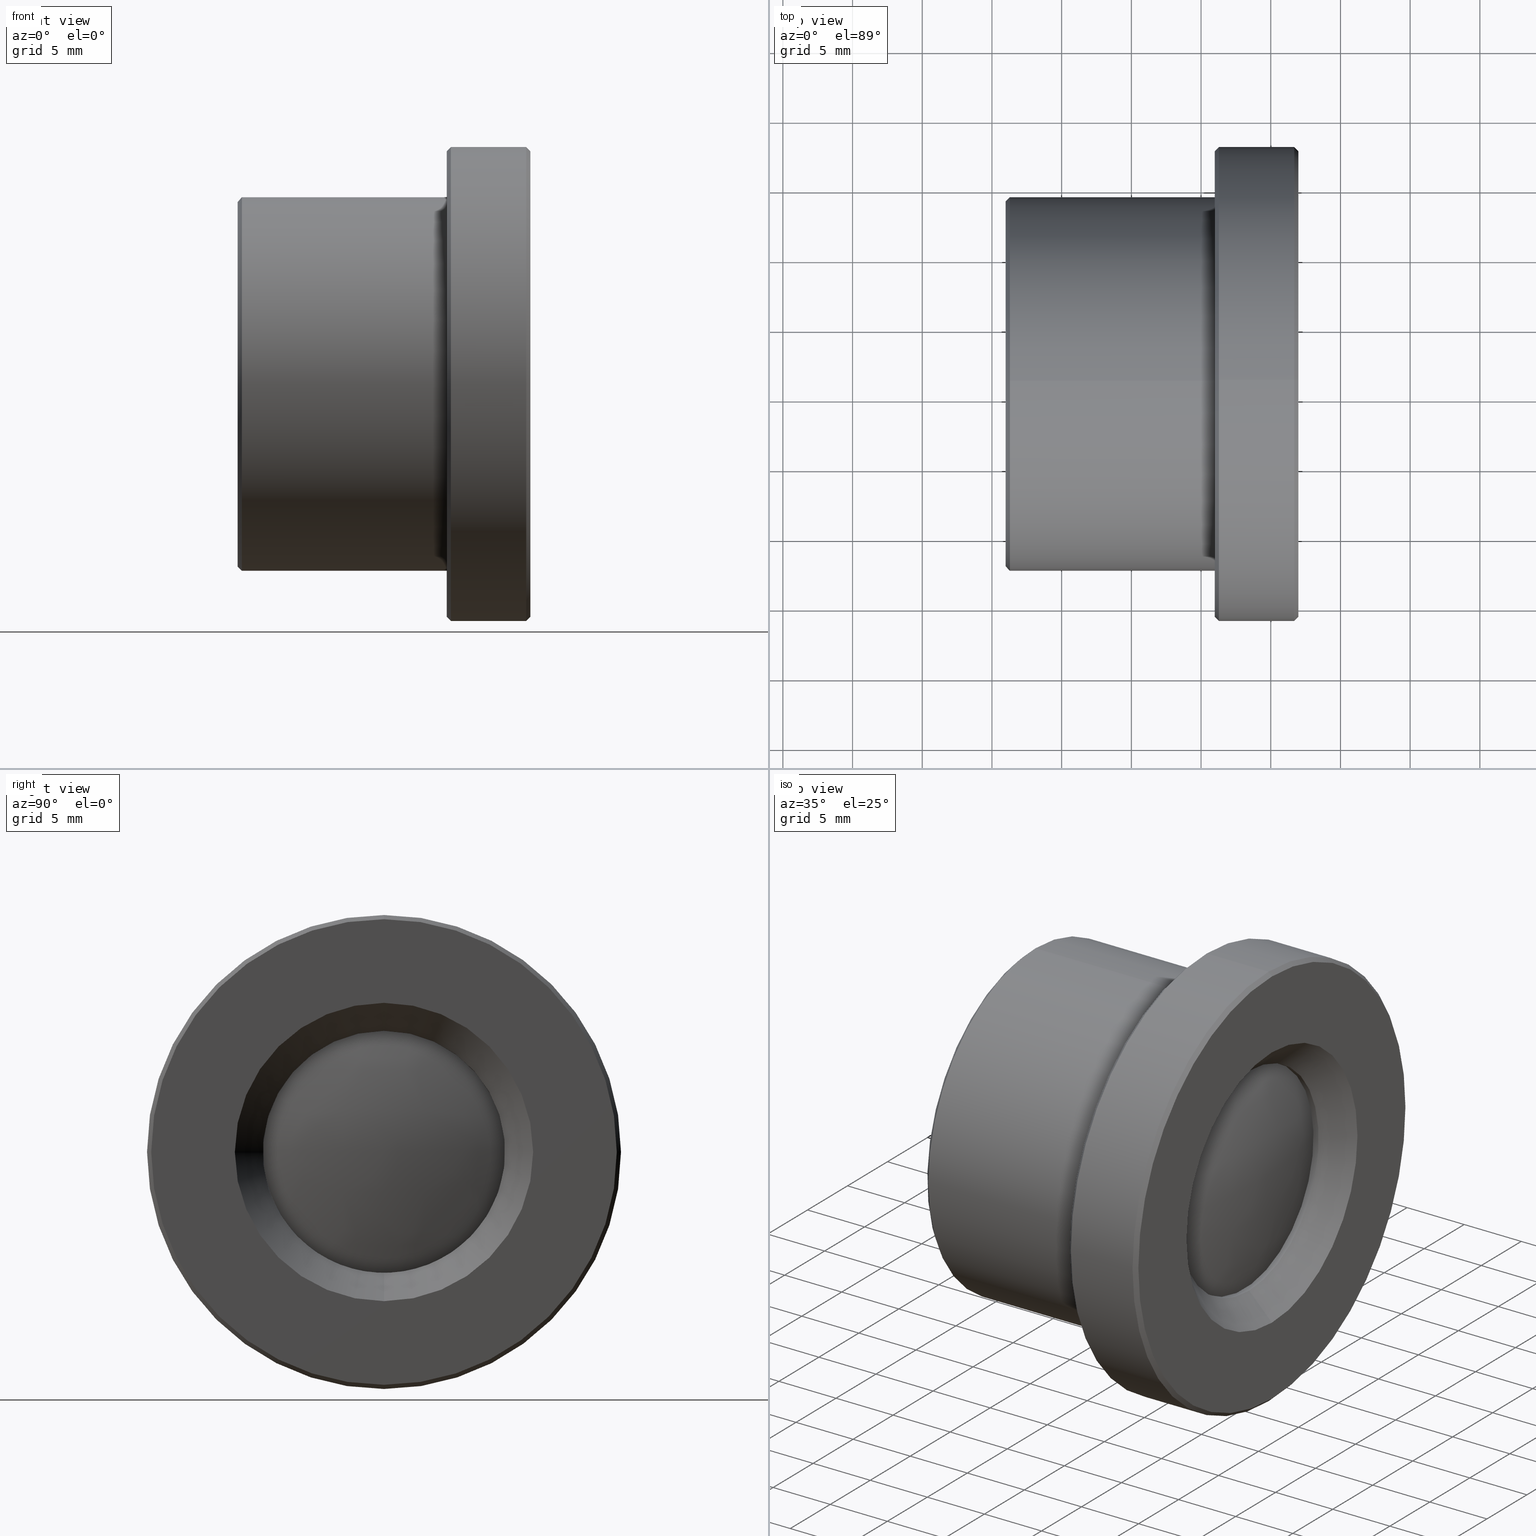
[diagram: canonical four-view strip — front | top / right | iso, engineering-drawing reading convention]
A machine part, canonical four-view strip (front | top / right | iso — engineering-drawing reading convention). The complete STEP part file that produces these views, byte-faithful:
ISO-10303-21;
HEADER;
FILE_DESCRIPTION (( 'STEP AP203' ),
    '1' );
FILE_NAME ('19mm.STEP',
    '2023-08-22T07:30:59',
    ( 'Windows User' ),
    ( 'P R C' ),
    'SwSTEP 2.0',
    'SolidWorks 2020',
    '' );
FILE_SCHEMA (( 'CONFIG_CONTROL_DESIGN' ));
ENDSEC;

DATA;
#1 = PERSON_AND_ORGANIZATION_ROLE ( 'design_owner' ) ;
#2 = FACE_OUTER_BOUND ( 'NONE', #68, .T. ) ;
#3 = CARTESIAN_POINT ( 'NONE',  ( 0.000000000000000000, 0.000000000000000000, 0.000000000000000000 ) ) ;
#4 = DIRECTION ( 'NONE',  ( -1.000000000000000000, 0.000000000000000000, 0.000000000000000000 ) ) ;
#5 = ADVANCED_FACE ( 'NONE', ( #408, #295 ), #438, .F. ) ;
#6 = CARTESIAN_POINT ( 'NONE',  ( 7656.280875221366841, -204.0133495471515630, -17.00000000000090239 ) ) ;
#7 = CARTESIAN_POINT ( 'NONE',  ( 7661.449936955510566, -200.9753385497254499, 3.018265889667290480 ) ) ;
#8 = CIRCLE ( 'NONE', #205, 10.69999999999244800 ) ;
#9 = AXIS2_PLACEMENT_3D ( 'NONE', #445, #175, #96 ) ;
#10 = APPROVAL_DATE_TIME ( #120, #402 ) ;
#11 = CARTESIAN_POINT ( 'NONE',  ( 7639.495609507284826, -204.0133495471515630, 0.000000000000000000 ) ) ;
#12 = APPROVAL_ROLE ( '' ) ;
#13 = PRODUCT_RELATED_PRODUCT_CATEGORY ( 'detail', '', ( #50 ) ) ;
#14 = CARTESIAN_POINT ( 'NONE',  ( 7641.280875762231517, -204.0133495471515630, 0.000000000000000000 ) ) ;
#15 = CARTESIAN_POINT ( 'NONE',  ( 7643.420402116918012, -200.1611946171682348, -11.04586798217061627 ) ) ;
#16 = CIRCLE ( 'NONE', #473, 13.40000000572944039 ) ;
#17 = PERSON_AND_ORGANIZATION_ROLE ( 'creator' ) ;
#18 = CARTESIAN_POINT ( 'NONE',  ( 7643.476783483160943, -214.6072566139389153, -3.305779238781193285 ) ) ;
#19 = PERSON_AND_ORGANIZATION_ROLE ( 'classification_officer' ) ;
#20 = DIRECTION ( 'NONE',  ( -1.000000000000000000, -0.000000000000000000, -0.000000000000000000 ) ) ;
#21 = APPROVAL ( #82, 'δָ��' ) ;
#22 = DIRECTION ( 'NONE',  ( -1.000000000000000000, -0.000000000000000000, -0.000000000000000000 ) ) ;
#23 = CONICAL_SURFACE ( 'NONE', #85, 10.69999999999244800, 0.7853981633954386643 ) ;
#24 = DIRECTION ( 'NONE',  ( -1.000000000000000000, -0.000000000000000000, -0.000000000000000000 ) ) ;
#25 = AXIS2_PLACEMENT_3D ( 'NONE', #3, #183, #180 ) ;
#26 = EDGE_LOOP ( 'NONE', ( #219 ) ) ;
#27 = DIRECTION ( 'NONE',  ( -1.000000000000000000, -0.000000000000000000, -0.000000000000000000 ) ) ;
#28 = PRODUCT_DEFINITION ( 'δ֪', '', #123, #228 ) ;
#29 = EDGE_LOOP ( 'NONE', ( #106 ) ) ;
#30 = CARTESIAN_POINT ( 'NONE',  ( 7643.280876115796673, -192.7133491993163830, 0.000000000000000000 ) ) ;
#31 = ORIENTED_EDGE ( 'NONE', *, *, #338, .T. ) ;
#32 = CYLINDRICAL_SURFACE ( 'NONE', #389, 8.699999999999818101 ) ;
#33 = CIRCLE ( 'NONE', #499, 8.699999999999818101 ) ;
#34 = EDGE_LOOP ( 'NONE', ( #485 ) ) ;
#35 = AXIS2_PLACEMENT_3D ( 'NONE', #30, #333, #102 ) ;
#36 = EDGE_LOOP ( 'NONE', ( #254 ) ) ;
#37 = EDGE_CURVE ( 'NONE', #107, #107, #77, .T. ) ;
#38 = FACE_OUTER_BOUND ( 'NONE', #330, .T. ) ;
#39 =( NAMED_UNIT ( * ) SI_UNIT ( $, .STERADIAN. ) SOLID_ANGLE_UNIT ( ) );
#40 = CARTESIAN_POINT ( 'NONE',  ( 7659.882946066190925, -212.8459069007113840, 2.883664566339439350 ) ) ;
#41 = AXIS2_PLACEMENT_3D ( 'NONE', #462, #115, #274 ) ;
#42 = CIRCLE ( 'NONE', #423, 11.30000034783518181 ) ;
#43 = CARTESIAN_POINT ( 'NONE',  ( 7655.980875221367569, -204.0133495471515630, 13.40000000572944039 ) ) ;
#44 = DIRECTION ( 'NONE',  ( 1.000000000000000000, 0.000000000000000000, 0.000000000000000000 ) ) ;
#45 = EDGE_CURVE ( 'NONE', #230, #230, #463, .T. ) ;
#46 = CARTESIAN_POINT ( 'NONE',  ( 7640.980875767964790, -204.0133495471515630, -13.09999999999581455 ) ) ;
#47 = APPLICATION_PROTOCOL_DEFINITION ( 'international standard', 'config_control_design', 1994, #255 ) ;
#48 = DIRECTION ( 'NONE',  ( 1.000000000000000000, -0.000000000000000000, 0.000000000000000000 ) ) ;
#49 = DIRECTION ( 'NONE',  ( 0.000000000000000000, 0.000000000000000000, 1.000000000000000000 ) ) ;
#50 = PRODUCT ( '19mm', '19mm', '', ( #302 ) ) ;
#51 = CARTESIAN_POINT ( 'NONE',  ( 7646.805328622443994, -193.4639260515820922, -9.075344728438510700 ) ) ;
#52 = CARTESIAN_POINT ( 'NONE',  ( 7646.827875168386527, -214.6072566139389153, -9.062219334726135500 ) ) ;
#53 = AXIS2_PLACEMENT_3D ( 'NONE', #112, #44, #269 ) ;
#54 = AXIS2_PLACEMENT_3D ( 'NONE', #412, #253, #404 ) ;
#55 = CARTESIAN_POINT ( 'NONE',  ( 7643.428675501929320, -207.9196741031916531, -11.04105165971077263 ) ) ;
#56 = ADVANCED_FACE ( 'NONE', ( #467, #109 ), #108, .T. ) ;
#57 = CARTESIAN_POINT ( 'NONE',  ( 7644.269570587941416, -204.0133495471515630, 0.000000000000000000 ) ) ;
#58 = PLANE ( 'NONE',  #35 ) ;
#59 = ORIENTED_EDGE ( 'NONE', *, *, #482, .F. ) ;
#60 = ADVANCED_FACE ( 'NONE', ( #2 ), #418, .T. ) ;
#61 = CONICAL_SURFACE ( 'NONE', #196, 17.00000000000090239, 0.7853981633974367327 ) ;
#62 = CARTESIAN_POINT ( 'NONE',  ( 7644.280875221365022, -192.3599466730717609, 0.000000000000000000 ) ) ;
#63 = AXIS2_PLACEMENT_3D ( 'NONE', #289, #440, #212 ) ;
#64 = ORIENTED_EDGE ( 'NONE', *, *, #170, .T. ) ;
#65 = FACE_OUTER_BOUND ( 'NONE', #129, .T. ) ;
#66 = ORIENTED_EDGE ( 'NONE', *, *, #427, .T. ) ;
#67 = DIRECTION ( 'NONE',  ( 0.000000000000000000, 0.000000000000000000, 1.000000000000000000 ) ) ;
#68 = EDGE_LOOP ( 'NONE', ( #337 ) ) ;
#69 = VERTEX_POINT ( 'NONE', #454 ) ;
#70 = ORIENTED_EDGE ( 'NONE', *, *, #338, .F. ) ;
#71 = EDGE_CURVE ( 'NONE', #69, #69, #405, .T. ) ;
#72 = VERTEX_POINT ( 'NONE', #268 ) ;
#73 = CARTESIAN_POINT ( 'NONE',  ( 7639.495609507284826, -204.0133495471515630, 0.000000000000000000 ) ) ;
#74 =( LENGTH_UNIT ( ) NAMED_UNIT ( * ) SI_UNIT ( .MILLI., .METRE. ) );
#75 = DIRECTION ( 'NONE',  ( -1.000000000000000000, -3.700743415416954124E-14, -0.000000000000000000 ) ) ;
#76 = DIRECTION ( 'NONE',  ( 0.000000000000000000, 0.000000000000000000, 1.000000000000000000 ) ) ;
#77 = CIRCLE ( 'NONE', #231, 10.70000000000070273 ) ;
#78 = AXIS2_PLACEMENT_3D ( 'NONE', #62, #367, #486 ) ;
#79 =( NAMED_UNIT ( * ) PLANE_ANGLE_UNIT ( ) SI_UNIT ( $, .RADIAN. ) );
#80 = FACE_BOUND ( 'NONE', #370, .T. ) ;
#81 = CARTESIAN_POINT ( 'NONE',  ( 7659.892753909765815, -207.0121516242092241, 8.904199734635835028 ) ) ;
#82 = APPROVAL_STATUS ( 'not_yet_approved' ) ;
#83 = CARTESIAN_POINT ( 'NONE',  ( 7646.829012104044523, -193.4639260515820922, 9.115906206490720365 ) ) ;
#84 = ADVANCED_FACE ( 'NONE', ( #459, #309 ), #315, .F. ) ;
#85 = AXIS2_PLACEMENT_3D ( 'NONE', #469, #362, #118 ) ;
#86 = DATE_AND_TIME ( #470, #232 ) ;
#87 = DIRECTION ( 'NONE',  ( -1.000000000000000000, -0.000000000000000000, -0.000000000000000000 ) ) ;
#88 = COORDINATED_UNIVERSAL_TIME_OFFSET ( 8, 0, .AHEAD. ) ;
#89 = EDGE_CURVE ( 'NONE', #111, #111, #33, .T. ) ;
#90 = CYLINDRICAL_SURFACE ( 'NONE', #457, 10.70000000000026574 ) ;
#91 = SECURITY_CLASSIFICATION ( '', '', #130 ) ;
#92 = CARTESIAN_POINT ( 'NONE',  ( 7639.345837176527311, -207.9196741031915963, -4.027631422594006416 ) ) ;
#93 = DIRECTION ( 'NONE',  ( 1.000000000000000000, 0.000000000000000000, 0.000000000000000000 ) ) ;
#94 = EDGE_LOOP ( 'NONE', ( #66 ) ) ;
#95 = EDGE_CURVE ( 'NONE', #384, #384, #139, .T. ) ;
#96 = DIRECTION ( 'NONE',  ( 0.000000000000000000, 0.000000000000000000, -1.000000000000000000 ) ) ;
#97 = EDGE_LOOP ( 'NONE', ( #476 ) ) ;
#98 = AXIS2_PLACEMENT_3D ( 'NONE', #434, #481, #199 ) ;
#99 = CIRCLE ( 'NONE', #63, 11.70000034783300080 ) ;
#100 = CARTESIAN_POINT ( 'NONE',  ( 7639.495609507284826, -204.0133495471515630, 0.000000000000000000 ) ) ;
#101 = ORIENTED_EDGE ( 'NONE', *, *, #472, .F. ) ;
#102 = DIRECTION ( 'NONE',  ( 0.000000000000000000, 0.000000000000000000, 1.000000000000000000 ) ) ;
#103 = ORIENTED_EDGE ( 'NONE', *, *, #71, .T. ) ;
#104 = CYLINDRICAL_SURFACE ( 'NONE', #240, 11.70000034783300080 ) ;
#105 = CC_DESIGN_PERSON_AND_ORGANIZATION_ASSIGNMENT ( #280, #19, ( #91 ) ) ;
#106 = ORIENTED_EDGE ( 'NONE', *, *, #377, .F. ) ;
#107 = VERTEX_POINT ( 'NONE', #273 ) ;
#108 = CONICAL_SURFACE ( 'NONE', #396, 17.00000000000181188, 0.7853981633974367327 ) ;
#109 = FACE_OUTER_BOUND ( 'NONE', #292, .T. ) ;
#110 = ADVANCED_BREP_SHAPE_REPRESENTATION ( '19mm', ( #211, #25 ), #414 ) ;
#111 = VERTEX_POINT ( 'NONE', #378 ) ;
#112 = CARTESIAN_POINT ( 'NONE',  ( 7659.980875221367569, -204.0133495471515630, 0.000000000000000000 ) ) ;
#113 = VERTEX_POINT ( 'NONE', #424 ) ;
#114 = CARTESIAN_POINT ( 'NONE',  ( 7659.535657272195749, -204.0133495471515630, 0.000000000000000000 ) ) ;
#115 = DIRECTION ( 'NONE',  ( -1.000000000000000000, -0.000000000000000000, -0.000000000000000000 ) ) ;
#116 = CARTESIAN_POINT ( 'NONE',  ( 7659.868545998720037, -195.1433392923319161, -2.932367345847070705 ) ) ;
#117 = CALENDAR_DATE ( 2023, 22, 8 ) ;
#118 = DIRECTION ( 'NONE',  ( 0.000000000000000000, 0.000000000000000000, -1.000000000000000000 ) ) ;
#119 = ADVANCED_FACE ( 'NONE', ( #80, #304 ), #61, .T. ) ;
#120 = DATE_AND_TIME ( #430, #464 ) ;
#121 = DIRECTION ( 'NONE',  ( 1.000000000000000000, 0.000000000000000000, 0.000000000000000000 ) ) ;
#122 = AXIS2_PLACEMENT_3D ( 'NONE', #227, #276, #347 ) ;
#123 = PRODUCT_DEFINITION_FORMATION_WITH_SPECIFIED_SOURCE ( '�κ�', '', #50, .NOT_KNOWN. ) ;
#124 = CARTESIAN_POINT ( 'NONE',  ( 7639.356402569862439, -207.9196741031915963, 4.087633242606061756 ) ) ;
#125 = ORIENTED_EDGE ( 'NONE', *, *, #156, .F. ) ;
#126 = ADVANCED_FACE ( 'NONE', ( #266, #38 ), #416, .T. ) ;
#127 = COORDINATED_UNIVERSAL_TIME_OFFSET ( 8, 0, .AHEAD. ) ;
#128 = CARTESIAN_POINT ( 'NONE',  ( 7644.280875221365932, -204.0133495471515630, 0.000000000000000000 ) ) ;
#129 = EDGE_LOOP ( 'NONE', ( #64 ) ) ;
#130 = SECURITY_CLASSIFICATION_LEVEL ( 'unclassified' ) ;
#131 = DIRECTION ( 'NONE',  ( -1.000000000000000000, -0.000000000000000000, -0.000000000000000000 ) ) ;
#132 = ORIENTED_EDGE ( 'NONE', *, *, #272, .F. ) ;
#133 = FACE_OUTER_BOUND ( 'NONE', #179, .T. ) ;
#134 = EDGE_LOOP ( 'NONE', ( #332 ) ) ;
#135 = PLANE ( 'NONE',  #78 ) ;
#136 = EDGE_LOOP ( 'NONE', ( #413 ) ) ;
#137 = CARTESIAN_POINT ( 'NONE',  ( 7655.980875221367569, -204.0133495471515630, 0.000000000000000000 ) ) ;
#138 = EDGE_LOOP ( 'NONE', ( #70 ) ) ;
#139 = CIRCLE ( 'NONE', #53, 8.699999999999818101 ) ;
#140 = AXIS2_PLACEMENT_3D ( 'NONE', #490, #215, #178 ) ;
#141 = FACE_BOUND ( 'NONE', #94, .T. ) ;
#142 = EDGE_LOOP ( 'NONE', ( #132 ) ) ;
#143 = FACE_OUTER_BOUND ( 'NONE', #259, .T. ) ;
#144 = ORIENTED_EDGE ( 'NONE', *, *, #303, .F. ) ;
#145 = APPLICATION_PROTOCOL_DEFINITION ( 'international standard', 'config_control_design', 1994, #318 ) ;
#146 = DIRECTION ( 'NONE',  ( 0.000000000000000000, 0.000000000000000000, 1.000000000000000000 ) ) ;
#147 = CARTESIAN_POINT ( 'NONE',  ( 7643.280876115796673, -204.0133495471515630, 11.30000034783518181 ) ) ;
#148 = CIRCLE ( 'NONE', #491, 17.00000000000090239 ) ;
#149 = DIRECTION ( 'NONE',  ( -1.000000000000000000, 0.000000000000000000, 0.000000000000000000 ) ) ;
#150 = CARTESIAN_POINT ( 'NONE',  ( 7661.680875221368296, -204.0133495471515630, 17.00000000000136069 ) ) ;
#151 = CARTESIAN_POINT ( 'NONE',  ( 7658.369807831731123, -195.1433392923319161, -8.551080146670830828 ) ) ;
#152 = VERTEX_POINT ( 'NONE', #311 ) ;
#153 = DIRECTION ( 'NONE',  ( 1.000000000000000000, 0.000000000000000000, 0.000000000000000000 ) ) ;
#154 = VERTEX_POINT ( 'NONE', #46 ) ;
#155 = CARTESIAN_POINT ( 'NONE',  ( 7645.080875221367023, -204.0133495471515630, 0.000000000000000000 ) ) ;
#156 = EDGE_CURVE ( 'NONE', #346, #346, #314, .T. ) ;
#157 = PERSON_AND_ORGANIZATION ( #403, #341 ) ;
#158 = FACE_BOUND ( 'NONE', #487, .T. ) ;
#159 = DATE_TIME_ROLE ( 'creation_date' ) ;
#160 = DIRECTION ( 'NONE',  ( 1.000000000000000000, -0.000000000000000000, 0.000000000000000000 ) ) ;
#161 = PLANE ( 'NONE',  #168 ) ;
#162 = CC_DESIGN_APPROVAL ( #465, ( #123 ) ) ;
#163 = CARTESIAN_POINT ( 'NONE',  ( 7646.851524397291541, -214.6072566139389153, 9.102722149953557107 ) ) ;
#164 = COORDINATED_UNIVERSAL_TIME_OFFSET ( 8, 0, .AHEAD. ) ;
#165 = CARTESIAN_POINT ( 'NONE',  ( 7661.980875221368478, -204.0133495471515630, 0.000000000000000000 ) ) ;
#166 = CARTESIAN_POINT ( 'NONE',  ( 7641.680876115799038, -204.0133495471515630, 0.000000000000000000 ) ) ;
#167 = EDGE_LOOP ( 'NONE', ( #492 ) ) ;
#168 = AXIS2_PLACEMENT_3D ( 'NONE', #319, #160, #350 ) ;
#169 = CIRCLE ( 'NONE', #374, 10.70000000000026574 ) ;
#170 = EDGE_CURVE ( 'NONE', #152, #152, #446, .T. ) ;
#171 = FACE_OUTER_BOUND ( 'NONE', #334, .T. ) ;
#172 = ORIENTED_EDGE ( 'NONE', *, *, #303, .T. ) ;
#173 = DIRECTION ( 'NONE',  ( 0.000000000000000000, 0.000000000000000000, 1.000000000000000000 ) ) ;
#174 = EDGE_LOOP ( 'NONE', ( #125 ) ) ;
#175 = DIRECTION ( 'NONE',  ( 1.000000000000000000, 0.000000000000000000, 0.000000000000000000 ) ) ;
#176 = EDGE_LOOP ( 'NONE', ( #353 ) ) ;
#177 = ADVANCED_FACE ( 'NONE', ( #399, #158 ), #366, .T. ) ;
#178 = DIRECTION ( 'NONE',  ( 0.000000000000000000, 0.000000000000000000, -1.000000000000000000 ) ) ;
#179 = EDGE_LOOP ( 'NONE', ( #252 ) ) ;
#180 = DIRECTION ( 'NONE',  ( 1.000000000000000000, 0.000000000000000000, 0.000000000000000000 ) ) ;
#181 = ORIENTED_EDGE ( 'NONE', *, *, #267, .F. ) ;
#182 = CC_DESIGN_PERSON_AND_ORGANIZATION_ASSIGNMENT ( #185, #1, ( #50 ) ) ;
#183 = DIRECTION ( 'NONE',  ( 0.000000000000000000, 0.000000000000000000, 1.000000000000000000 ) ) ;
#184 = CARTESIAN_POINT ( 'NONE',  ( 7661.980875221368478, -204.0133495471515630, 0.000000000000000000 ) ) ;
#185 = PERSON_AND_ORGANIZATION ( #403, #341 ) ;
#186 = AXIS2_PLACEMENT_3D ( 'NONE', #286, #121, #283 ) ;
#187 = LOCAL_TIME ( 15, 30, 59.00000000000000000, #436 ) ;
#188 = CARTESIAN_POINT ( 'NONE',  ( 7659.878649858987046, -212.8459069007113840, -2.933250283732379504 ) ) ;
#189 = AXIS2_PLACEMENT_3D ( 'NONE', #400, #22, #331 ) ;
#190 = DIRECTION ( 'NONE',  ( -1.000000000000000000, -0.000000000000000000, -0.000000000000000000 ) ) ;
#191 = VERTEX_POINT ( 'NONE', #461 ) ;
#192 = CARTESIAN_POINT ( 'NONE',  ( 7640.980875767964790, -190.9133495471557467, 0.000000000000000000 ) ) ;
#193 = CC_DESIGN_PERSON_AND_ORGANIZATION_ASSIGNMENT ( #480, #17, ( #123 ) ) ;
#194 = APPROVAL_STATUS ( 'not_yet_approved' ) ;
#195 = CARTESIAN_POINT ( 'NONE',  ( 7658.392060399817638, -212.8459069007113555, 8.506277549658658899 ) ) ;
#196 = AXIS2_PLACEMENT_3D ( 'NONE', #460, #455, #271 ) ;
#197 = CC_DESIGN_APPROVAL ( #21, ( #91 ) ) ;
#198 = CALENDAR_DATE ( 2023, 22, 8 ) ;
#199 = DIRECTION ( 'NONE',  ( 0.000000000000000000, 0.000000000000000000, 1.000000000000000000 ) ) ;
#200 = EDGE_LOOP ( 'NONE', ( #31 ) ) ;
#201 = EDGE_CURVE ( 'NONE', #270, #270, #16, .T. ) ;
#202 = FACE_OUTER_BOUND ( 'NONE', #209, .T. ) ;
#203 = DATE_AND_TIME ( #428, #306 ) ;
#204 = PLANE ( 'NONE',  #98 ) ;
#205 = AXIS2_PLACEMENT_3D ( 'NONE', #165, #242, #395 ) ;
#206 = CC_DESIGN_SECURITY_CLASSIFICATION ( #91, ( #123 ) ) ;
#207 = FACE_OUTER_BOUND ( 'NONE', #136, .T. ) ;
#208 = FACE_OUTER_BOUND ( 'NONE', #261, .T. ) ;
#209 = EDGE_LOOP ( 'NONE', ( #411 ) ) ;
#210 = ADVANCED_FACE ( 'NONE', ( #317, #390 ), #161, .F. ) ;
#211 = MANIFOLD_SOLID_BREP ( 'NONE', #256 ) ;
#212 = DIRECTION ( 'NONE',  ( 0.000000000000000000, 0.000000000000000000, 1.000000000000000000 ) ) ;
#213 = EDGE_LOOP ( 'NONE', ( #221 ) ) ;
#214 = CONICAL_SURFACE ( 'NONE', #247, 11.65340287407978792, 0.8726646259980592735 ) ;
#215 = DIRECTION ( 'NONE',  ( 1.000000000000000000, 0.000000000000000000, 0.000000000000000000 ) ) ;
#216 = ORIENTED_EDGE ( 'NONE', *, *, #201, .F. ) ;
#217 = FACE_OUTER_BOUND ( 'NONE', #176, .T. ) ;
#218 = ADVANCED_FACE ( 'NONE', ( #327, #358 ), #204, .F. ) ;
#219 = ORIENTED_EDGE ( 'NONE', *, *, #267, .T. ) ;
#220 = CYLINDRICAL_SURFACE ( 'NONE', #189, 17.00000000000136069 ) ;
#221 = ORIENTED_EDGE ( 'NONE', *, *, #89, .F. ) ;
#222 = AXIS2_PLACEMENT_3D ( 'NONE', #421, #75, #495 ) ;
#223 = CIRCLE ( 'NONE', #288, 13.40000000572944039 ) ;
#224 = CARTESIAN_POINT ( 'NONE',  ( 7661.980875221368478, -204.0133495471515630, 16.70000000000162999 ) ) ;
#225 = ORIENTED_EDGE ( 'NONE', *, *, #293, .T. ) ;
#226 = VERTEX_POINT ( 'NONE', #265 ) ;
#227 = CARTESIAN_POINT ( 'NONE',  ( 7655.980875221366659, -204.0133495471515630, 0.000000000000000000 ) ) ;
#228 = DESIGN_CONTEXT ( 'detailed design', #255, 'design' ) ;
#229 = DIRECTION ( 'NONE',  ( -1.000000000000000000, -0.000000000000000000, -0.000000000000000000 ) ) ;
#230 = VERTEX_POINT ( 'NONE', #313 ) ;
#231 = AXIS2_PLACEMENT_3D ( 'NONE', #155, #229, #345 ) ;
#232 = LOCAL_TIME ( 15, 30, 59.00000000000000000, #127 ) ;
#233 = CARTESIAN_POINT ( 'NONE',  ( 7658.382404017956105, -195.1433392923319161, 8.503717074422439737 ) ) ;
#234 = CARTESIAN_POINT ( 'NONE',  ( 7644.569570587943417, -204.0133495471515630, 10.70000000000026574 ) ) ;
#235 = CARTESIAN_POINT ( 'NONE',  ( 7658.379460420873329, -212.8459069007113555, -8.553654882961669870 ) ) ;
#236 = CC_DESIGN_DATE_AND_TIME_ASSIGNMENT ( #324, #159, ( #28 ) ) ;
#237 = DATE_TIME_ROLE ( 'classification_date' ) ;
#238 = CARTESIAN_POINT ( 'NONE',  ( 7661.448885765393243, -207.0121516242092241, -3.070467222067310598 ) ) ;
#239 = CARTESIAN_POINT ( 'NONE',  ( 7643.485455294026906, -214.6072566139389153, 3.355027233463912850 ) ) ;
#240 = AXIS2_PLACEMENT_3D ( 'NONE', #409, #262, #67 ) ;
#241 = APPROVAL_DATE_TIME ( #86, #21 ) ;
#242 = DIRECTION ( 'NONE',  ( 1.000000000000000000, 0.000000000000000000, 0.000000000000000000 ) ) ;
#243 = DATE_AND_TIME ( #117, #187 ) ;
#244 = FACE_BOUND ( 'NONE', #285, .T. ) ;
#245 = PERSON_AND_ORGANIZATION_ROLE ( 'creator' ) ;
#246 = CARTESIAN_POINT ( 'NONE',  ( 7643.449383336115716, -193.4639260515820922, -3.310567210958084150 ) ) ;
#247 = AXIS2_PLACEMENT_3D ( 'NONE', #128, #297, #443 ) ;
#248 = CARTESIAN_POINT ( 'NONE',  ( 7643.457488792406366, -207.9196741031916531, 11.09039869698413838 ) ) ;
#249 = ADVANCED_FACE ( 'NONE', ( #202, #207 ), #90, .T. ) ;
#250 = ORIENTED_EDGE ( 'NONE', *, *, #201, .T. ) ;
#251 = FACE_OUTER_BOUND ( 'NONE', #375, .T. ) ;
#252 = ORIENTED_EDGE ( 'NONE', *, *, #170, .F. ) ;
#253 = DIRECTION ( 'NONE',  ( -1.000000000000000000, -3.700743415416954124E-14, -0.000000000000000000 ) ) ;
#254 = ORIENTED_EDGE ( 'NONE', *, *, #45, .F. ) ;
#255 = APPLICATION_CONTEXT ( 'configuration controlled 3d designs of mechanical parts and assemblies' ) ;
#256 = CLOSED_SHELL ( 'NONE', ( #126, #387, #210, #84, #119, #5, #394, #441, #56, #449, #218, #456, #279, #360, #373, #326, #60, #249, #177, #310 ) ) ;
#257 = CC_DESIGN_PERSON_AND_ORGANIZATION_ASSIGNMENT ( #468, #391, ( #123 ) ) ;
#258 = CYLINDRICAL_SURFACE ( 'NONE', #282, 11.30000034783518181 ) ;
#259 = EDGE_LOOP ( 'NONE', ( #216 ) ) ;
#260 = FACE_OUTER_BOUND ( 'NONE', #167, .T. ) ;
#261 = EDGE_LOOP ( 'NONE', ( #144 ) ) ;
#262 = DIRECTION ( 'NONE',  ( -1.000000000000000000, -0.000000000000000000, -0.000000000000000000 ) ) ;
#263 = EDGE_LOOP ( 'NONE', ( #372 ) ) ;
#264 = AXIS2_PLACEMENT_3D ( 'NONE', #184, #4, #312 ) ;
#265 = CARTESIAN_POINT ( 'NONE',  ( 7661.980875221368478, -204.0133495471515630, -10.69999999999244800 ) ) ;
#266 = FACE_OUTER_BOUND ( 'NONE', #290, .T. ) ;
#267 = EDGE_CURVE ( 'NONE', #226, #226, #8, .T. ) ;
#268 = CARTESIAN_POINT ( 'NONE',  ( 7641.680876115799038, -204.0133495471515630, 11.30000034783485319 ) ) ;
#269 = DIRECTION ( 'NONE',  ( 0.000000000000000000, 0.000000000000000000, -1.000000000000000000 ) ) ;
#270 = VERTEX_POINT ( 'NONE', #307 ) ;
#271 = DIRECTION ( 'NONE',  ( 0.000000000000000000, 1.000000000000000000, 0.000000000000000000 ) ) ;
#272 = EDGE_CURVE ( 'NONE', #191, #191, #380, .T. ) ;
#273 = CARTESIAN_POINT ( 'NONE',  ( 7645.080875221367023, -204.0133495471515630, 10.70000000000070273 ) ) ;
#274 = DIRECTION ( 'NONE',  ( 0.000000000000000000, 0.000000000000000000, 1.000000000000000000 ) ) ;
#275 = CARTESIAN_POINT ( 'NONE',  ( 7640.980875767965699, -216.0133495471523304, 0.000000000000000000 ) ) ;
#276 = DIRECTION ( 'NONE',  ( 1.000000000000000000, 2.612289469706111714E-14, -0.000000000000000000 ) ) ;
#277 = PERSON_AND_ORGANIZATION ( #403, #341 ) ;
#278 = DIRECTION ( 'NONE',  ( 0.000000000000000000, 0.000000000000000000, -1.000000000000000000 ) ) ;
#279 = ADVANCED_FACE ( 'NONE', ( #397, #244 ), #23, .F. ) ;
#280 = PERSON_AND_ORGANIZATION ( #403, #341 ) ;
#281 = DIRECTION ( 'NONE',  ( 1.000000000000000000, 0.000000000000000000, 0.000000000000000000 ) ) ;
#282 = AXIS2_PLACEMENT_3D ( 'NONE', #300, #294, #452 ) ;
#283 = DIRECTION ( 'NONE',  ( 0.000000000000000000, 0.000000000000000000, -1.000000000000000000 ) ) ;
#284 = DIRECTION ( 'NONE',  ( 0.000000000000000000, 0.000000000000000000, 1.000000000000000000 ) ) ;
#285 = EDGE_LOOP ( 'NONE', ( #453 ) ) ;
#286 = CARTESIAN_POINT ( 'NONE',  ( 7644.569570587943417, -204.0133495471515630, 0.000000000000000000 ) ) ;
#287 = CIRCLE ( 'NONE', #422, 17.00000000000136069 ) ;
#288 = AXIS2_PLACEMENT_3D ( 'NONE', #137, #27, #363 ) ;
#289 = CARTESIAN_POINT ( 'NONE',  ( 7643.280876115796673, -204.0133495471515630, 0.000000000000000000 ) ) ;
#290 = EDGE_LOOP ( 'NONE', ( #250 ) ) ;
#291 = DIRECTION ( 'NONE',  ( 0.000000000000000000, 0.000000000000000000, 1.000000000000000000 ) ) ;
#292 = EDGE_LOOP ( 'NONE', ( #444 ) ) ;
#293 = EDGE_CURVE ( 'NONE', #342, #342, #287, .T. ) ;
#294 = DIRECTION ( 'NONE',  ( -1.000000000000000000, -0.000000000000000000, -0.000000000000000000 ) ) ;
#295 = FACE_OUTER_BOUND ( 'NONE', #368, .T. ) ;
#296 = AXIS2_PLACEMENT_3D ( 'NONE', #57, #352, #392 ) ;
#297 = DIRECTION ( 'NONE',  ( -1.000000000000000000, 0.000000000000000000, 0.000000000000000000 ) ) ;
#298 = EDGE_LOOP ( 'NONE', ( #59 ) ) ;
#299 =( BOUNDED_SURFACE ( )  B_SPLINE_SURFACE ( 3, 3, ( 
 ( #51, #246, #355, #83 ),
 ( #15, #322, #475, #429 ),
 ( #55, #92, #124, #248 ),
 ( #52, #18, #239, #163 ) ),
 .UNSPECIFIED., .F., .F., .F. ) 
 B_SPLINE_SURFACE_WITH_KNOTS ( ( 4, 4 ),
 ( 4, 4 ),
 ( 0.000000000000000000, 1.000000000000000000 ),
 ( 0.000000000000000000, 1.000000000000000000 ),
 .UNSPECIFIED. ) 
 GEOMETRIC_REPRESENTATION_ITEM ( )  RATIONAL_B_SPLINE_SURFACE ( (
 ( 1.000000000000000000, 0.9090461523126416310, 0.9090461523126416310, 1.000000000000000000),
 ( 0.9083966603011912611, 0.8257744888204516798, 0.8257744888204516798, 0.9083966603011912611),
 ( 0.9083966603011912611, 0.8257744888204516798, 0.8257744888204516798, 0.9083966603011912611),
 ( 1.000000000000000000, 0.9090461523126416310, 0.9090461523126416310, 1.000000000000000000) ) ) 
 REPRESENTATION_ITEM ( '' )  SURFACE ( )  );
#300 = CARTESIAN_POINT ( 'NONE',  ( 7639.495609507284826, -204.0133495471515630, 0.000000000000000000 ) ) ;
#301 = ORIENTED_EDGE ( 'NONE', *, *, #272, .T. ) ;
#302 = MECHANICAL_CONTEXT ( 'NONE', #318, 'mechanical' ) ;
#303 = EDGE_CURVE ( 'NONE', #417, #417, #148, .T. ) ;
#304 = FACE_OUTER_BOUND ( 'NONE', #401, .T. ) ;
#305 = UNCERTAINTY_MEASURE_WITH_UNIT (LENGTH_MEASURE( 1.000000000000000082E-05 ), #74, 'distance_accuracy_value', 'NONE');
#306 = LOCAL_TIME ( 15, 30, 59.00000000000000000, #164 ) ;
#307 = CARTESIAN_POINT ( 'NONE',  ( 7641.280875762231517, -204.0133495471515630, 13.40000000572944039 ) ) ;
#308 = CARTESIAN_POINT ( 'NONE',  ( 7659.872840912724314, -195.1433392923319161, 2.882796554254334342 ) ) ;
#309 = FACE_BOUND ( 'NONE', #263, .T. ) ;
#310 = ADVANCED_FACE ( 'NONE', ( #471 ), #299, .T. ) ;
#311 = CARTESIAN_POINT ( 'NONE',  ( 7644.280875221364113, -204.0133495471515630, 11.70000034783300080 ) ) ;
#312 = DIRECTION ( 'NONE',  ( 0.000000000000000000, 0.000000000000000000, 1.000000000000000000 ) ) ;
#313 = CARTESIAN_POINT ( 'NONE',  ( 7655.980875221366659, -187.3133495471508354, 0.000000000000000000 ) ) ;
#314 = CIRCLE ( 'NONE', #264, 16.70000000000162999 ) ;
#315 = PLANE ( 'NONE',  #388 ) ;
#316 = APPROVAL_ROLE ( '' ) ;
#317 = FACE_OUTER_BOUND ( 'NONE', #36, .T. ) ;
#318 = APPLICATION_CONTEXT ( 'configuration controlled 3d designs of mechanical parts and assemblies' ) ;
#319 = CARTESIAN_POINT ( 'NONE',  ( 7655.980875221366659, -187.3133495471508354, 0.000000000000000000 ) ) ;
#320 = CC_DESIGN_DATE_AND_TIME_ASSIGNMENT ( #243, #237, ( #91 ) ) ;
#321 = EDGE_LOOP ( 'NONE', ( #442 ) ) ;
#322 = CARTESIAN_POINT ( 'NONE',  ( 7639.335782777664463, -200.1611946171682632, -4.029388354114670001 ) ) ;
#323 = CIRCLE ( 'NONE', #474, 11.30000034783485319 ) ;
#324 = DATE_AND_TIME ( #198, #398 ) ;
#325 = FACE_BOUND ( 'NONE', #34, .T. ) ;
#326 = ADVANCED_FACE ( 'NONE', ( #325, #478 ), #214, .F. ) ;
#327 = FACE_BOUND ( 'NONE', #365, .T. ) ;
#328 = DIRECTION ( 'NONE',  ( 0.000000000000000000, 0.000000000000000000, 1.000000000000000000 ) ) ;
#329 = DIRECTION ( 'NONE',  ( -1.000000000000000000, -0.000000000000000000, -0.000000000000000000 ) ) ;
#330 = EDGE_LOOP ( 'NONE', ( #447 ) ) ;
#331 = DIRECTION ( 'NONE',  ( 0.000000000000000000, 0.000000000000000000, 1.000000000000000000 ) ) ;
#332 = ORIENTED_EDGE ( 'NONE', *, *, #156, .T. ) ;
#333 = DIRECTION ( 'NONE',  ( -1.000000000000000000, 0.000000000000000000, 0.000000000000000000 ) ) ;
#334 = EDGE_LOOP ( 'NONE', ( #339 ) ) ;
#335 = CONICAL_SURFACE ( 'NONE', #140, 13.40000000572944217, 0.7853981825084979107 ) ;
#336 = DIRECTION ( 'NONE',  ( -1.000000000000000000, -0.000000000000000000, -0.000000000000000000 ) ) ;
#337 = ORIENTED_EDGE ( 'NONE', *, *, #89, .T. ) ;
#338 = EDGE_CURVE ( 'NONE', #154, #154, #431, .T. ) ;
#339 = ORIENTED_EDGE ( 'NONE', *, *, #472, .T. ) ;
#340 = CARTESIAN_POINT ( 'NONE',  ( 7661.680875221368296, -204.0133495471515630, 0.000000000000000000 ) ) ;
#341 = ORGANIZATION ( 'δָ��', 'δָ��', '' ) ;
#342 = VERTEX_POINT ( 'NONE', #150 ) ;
#343 = CARTESIAN_POINT ( 'NONE',  ( 7661.453382948426224, -207.0121516242092241, 3.018561893434729360 ) ) ;
#344 = EDGE_CURVE ( 'NONE', #496, #496, #458, .T. ) ;
#345 = DIRECTION ( 'NONE',  ( 0.000000000000000000, 0.000000000000000000, 1.000000000000000000 ) ) ;
#346 = VERTEX_POINT ( 'NONE', #224 ) ;
#347 = DIRECTION ( 'NONE',  ( 0.000000000000000000, 1.000000000000000000, 0.000000000000000000 ) ) ;
#348 = COORDINATED_UNIVERSAL_TIME_OFFSET ( 8, 0, .AHEAD. ) ;
#349 = AXIS2_PLACEMENT_3D ( 'NONE', #386, #149, #385 ) ;
#350 = DIRECTION ( 'NONE',  ( 0.000000000000000000, 0.000000000000000000, -1.000000000000000000 ) ) ;
#351 = APPROVAL_STATUS ( 'not_yet_approved' ) ;
#352 = DIRECTION ( 'NONE',  ( 1.000000000000000000, 0.000000000000000000, 0.000000000000000000 ) ) ;
#353 = ORIENTED_EDGE ( 'NONE', *, *, #95, .T. ) ;
#354 = SHAPE_DEFINITION_REPRESENTATION ( #356, #110 ) ;
#355 = CARTESIAN_POINT ( 'NONE',  ( 7643.458067706923430, -193.4639260515820922, 3.359886534670175617 ) ) ;
#356 = PRODUCT_DEFINITION_SHAPE ( 'NONE', 'NONE',  #28 ) ;
#357 = APPROVAL_DATE_TIME ( #203, #465 ) ;
#358 = FACE_OUTER_BOUND ( 'NONE', #174, .T. ) ;
#359 = APPROVAL_PERSON_ORGANIZATION ( #157, #402, #316 ) ;
#360 = ADVANCED_FACE ( 'NONE', ( #65, #450 ), #135, .F. ) ;
#361 = PERSON_AND_ORGANIZATION ( #403, #341 ) ;
#362 = DIRECTION ( 'NONE',  ( 1.000000000000000000, 0.000000000000000000, 0.000000000000000000 ) ) ;
#363 = DIRECTION ( 'NONE',  ( 0.000000000000000000, 0.000000000000000000, 1.000000000000000000 ) ) ;
#364 = CARTESIAN_POINT ( 'NONE',  ( 7644.569570587943417, -204.0133495471515630, 0.000000000000000000 ) ) ;
#365 = EDGE_LOOP ( 'NONE', ( #181 ) ) ;
#366 = CONICAL_SURFACE ( 'NONE', #186, 10.69999999999982165, 0.7853981633975292143 ) ;
#367 = DIRECTION ( 'NONE',  ( 1.000000000000000000, -0.000000000000000000, 0.000000000000000000 ) ) ;
#368 = EDGE_LOOP ( 'NONE', ( #435 ) ) ;
#369 = FACE_BOUND ( 'NONE', #200, .T. ) ;
#370 = EDGE_LOOP ( 'NONE', ( #451 ) ) ;
#371 = DIRECTION ( 'NONE',  ( 0.000000000000000000, 0.000000000000000000, 1.000000000000000000 ) ) ;
#372 = ORIENTED_EDGE ( 'NONE', *, *, #344, .F. ) ;
#373 = ADVANCED_FACE ( 'NONE', ( #484, #217 ), #32, .F. ) ;
#374 = AXIS2_PLACEMENT_3D ( 'NONE', #364, #93, #173 ) ;
#375 = EDGE_LOOP ( 'NONE', ( #406 ) ) ;
#376 = DIRECTION ( 'NONE',  ( 0.000000000000000000, 0.000000000000000000, 1.000000000000000000 ) ) ;
#377 = EDGE_CURVE ( 'NONE', #420, #420, #169, .T. ) ;
#378 = CARTESIAN_POINT ( 'NONE',  ( 7659.535657272195749, -204.0133495471515630, 8.699999999999818101 ) ) ;
#379 = CARTESIAN_POINT ( 'NONE',  ( 7659.879564505996314, -207.0121516242092241, -8.953793371354379360 ) ) ;
#380 = CIRCLE ( 'NONE', #296, 10.39999999999781011 ) ;
#381 = CC_DESIGN_APPROVAL ( #402, ( #28 ) ) ;
#382 = VERTEX_POINT ( 'NONE', #147 ) ;
#383 = CARTESIAN_POINT ( 'NONE',  ( 7661.445440213478832, -200.9753385497254499, -3.070166128401665695 ) ) ;
#384 = VERTEX_POINT ( 'NONE', #466 ) ;
#385 = DIRECTION ( 'NONE',  ( 0.000000000000000000, 0.000000000000000000, 1.000000000000000000 ) ) ;
#386 = CARTESIAN_POINT ( 'NONE',  ( 7644.280875221365932, -204.0133495471515630, 0.000000000000000000 ) ) ;
#387 = ADVANCED_FACE ( 'NONE', ( #143, #369 ), #335, .T. ) ;
#388 = AXIS2_PLACEMENT_3D ( 'NONE', #192, #48, #419 ) ;
#389 = AXIS2_PLACEMENT_3D ( 'NONE', #100, #336, #291 ) ;
#390 = FACE_BOUND ( 'NONE', #321, .T. ) ;
#391 = PERSON_AND_ORGANIZATION_ROLE ( 'design_supplier' ) ;
#392 = DIRECTION ( 'NONE',  ( 0.000000000000000000, 0.000000000000000000, -1.000000000000000000 ) ) ;
#393 = APPROVAL_ROLE ( '' ) ;
#394 = ADVANCED_FACE ( 'NONE', ( #493, #208 ), #220, .T. ) ;
#395 = DIRECTION ( 'NONE',  ( 0.000000000000000000, 0.000000000000000000, -1.000000000000000000 ) ) ;
#396 = AXIS2_PLACEMENT_3D ( 'NONE', #340, #498, #76 ) ;
#397 = FACE_OUTER_BOUND ( 'NONE', #26, .T. ) ;
#398 = LOCAL_TIME ( 15, 30, 59.00000000000000000, #88 ) ;
#399 = FACE_OUTER_BOUND ( 'NONE', #29, .T. ) ;
#400 = CARTESIAN_POINT ( 'NONE',  ( 7639.495609507284826, -204.0133495471515630, 0.000000000000000000 ) ) ;
#401 = EDGE_LOOP ( 'NONE', ( #172 ) ) ;
#402 = APPROVAL ( #194, 'δָ��' ) ;
#403 = PERSON ( 'δָ��', 'δָ��', 'δָ��', ('δָ��'), ('δָ��'), ('δָ��') ) ;
#404 = DIRECTION ( 'NONE',  ( 7.401486830833908248E-14, -1.000000000000000000, 0.000000000000000000 ) ) ;
#405 = CIRCLE ( 'NONE', #349, 11.65340287407978792 ) ;
#406 = ORIENTED_EDGE ( 'NONE', *, *, #427, .F. ) ;
#407 = FACE_OUTER_BOUND ( 'NONE', #298, .T. ) ;
#408 = FACE_BOUND ( 'NONE', #489, .T. ) ;
#409 = CARTESIAN_POINT ( 'NONE',  ( 7639.495609507284826, -204.0133495471515630, 0.000000000000000000 ) ) ;
#410 = EDGE_CURVE ( 'NONE', #415, #415, #223, .T. ) ;
#411 = ORIENTED_EDGE ( 'NONE', *, *, #377, .T. ) ;
#412 = CARTESIAN_POINT ( 'NONE',  ( 7640.980875767964790, -204.0133495471515630, 0.000000000000000000 ) ) ;
#413 = ORIENTED_EDGE ( 'NONE', *, *, #37, .T. ) ;
#414 =( GEOMETRIC_REPRESENTATION_CONTEXT ( 3 ) GLOBAL_UNCERTAINTY_ASSIGNED_CONTEXT ( ( #305 ) ) GLOBAL_UNIT_ASSIGNED_CONTEXT ( ( #74, #79, #39 ) ) REPRESENTATION_CONTEXT ( 'NONE', 'WORKASPACE' ) );
#415 = VERTEX_POINT ( 'NONE', #43 ) ;
#416 = CYLINDRICAL_SURFACE ( 'NONE', #483, 13.40000000572944039 ) ;
#417 = VERTEX_POINT ( 'NONE', #6 ) ;
#418 =( BOUNDED_SURFACE ( )  B_SPLINE_SURFACE ( 3, 3, ( 
 ( #233, #308, #116, #151 ),
 ( #426, #7, #383, #425 ),
 ( #81, #343, #238, #379 ),
 ( #195, #40, #188, #235 ) ),
 .UNSPECIFIED., .F., .F., .F. ) 
 B_SPLINE_SURFACE_WITH_KNOTS ( ( 4, 4 ),
 ( 4, 4 ),
 ( 0.000000000000000000, 1.000000000000000000 ),
 ( 0.000000000000000000, 1.000000000000000000 ),
 .UNSPECIFIED. ) 
 GEOMETRIC_REPRESENTATION_ITEM ( )  RATIONAL_B_SPLINE_SURFACE ( (
 ( 1.000000000000000000, 0.9776048456573501744, 0.9776048456573501744, 1.000000000000000000),
 ( 0.9774786458771445030, 0.9555878607360814847, 0.9555878607360814847, 0.9774786458771445030),
 ( 0.9774786458771445030, 0.9555878607360814847, 0.9555878607360814847, 0.9774786458771445030),
 ( 1.000000000000000000, 0.9776048456573501744, 0.9776048456573501744, 1.000000000000000000) ) ) 
 REPRESENTATION_ITEM ( '' )  SURFACE ( )  );
#419 = DIRECTION ( 'NONE',  ( 0.000000000000000000, 0.000000000000000000, -1.000000000000000000 ) ) ;
#420 = VERTEX_POINT ( 'NONE', #234 ) ;
#421 = CARTESIAN_POINT ( 'NONE',  ( 7640.980875767964790, -204.0133495471515630, 0.000000000000000000 ) ) ;
#422 = AXIS2_PLACEMENT_3D ( 'NONE', #433, #131, #439 ) ;
#423 = AXIS2_PLACEMENT_3D ( 'NONE', #488, #24, #371 ) ;
#424 = CARTESIAN_POINT ( 'NONE',  ( 7643.280876115796673, -204.0133495471515630, 11.70000034783300080 ) ) ;
#425 = CARTESIAN_POINT ( 'NONE',  ( 7659.876272843588595, -200.9753385497255067, -8.952915351733370386 ) ) ;
#426 = CARTESIAN_POINT ( 'NONE',  ( 7659.889460953990238, -200.9753385497255067, 8.903326578225710719 ) ) ;
#427 = EDGE_CURVE ( 'NONE', #382, #382, #42, .T. ) ;
#428 = CALENDAR_DATE ( 2023, 22, 8 ) ;
#429 = CARTESIAN_POINT ( 'NONE',  ( 7643.449227976315342, -200.1611946171682348, 11.09523654558497441 ) ) ;
#430 = CALENDAR_DATE ( 2023, 22, 8 ) ;
#431 = CIRCLE ( 'NONE', #9, 13.09999999999581455 ) ;
#432 = APPROVAL_PERSON_ORGANIZATION ( #361, #465, #12 ) ;
#433 = CARTESIAN_POINT ( 'NONE',  ( 7661.680875221368296, -204.0133495471515630, 0.000000000000000000 ) ) ;
#434 = CARTESIAN_POINT ( 'NONE',  ( 7661.980875221368478, -187.3133495471499259, 0.000000000000000000 ) ) ;
#435 = ORIENTED_EDGE ( 'NONE', *, *, #344, .T. ) ;
#436 = COORDINATED_UNIVERSAL_TIME_OFFSET ( 8, 0, .AHEAD. ) ;
#437 = CARTESIAN_POINT ( 'NONE',  ( 7656.280875221366841, -204.0133495471515630, 0.000000000000000000 ) ) ;
#438 = CONICAL_SURFACE ( 'NONE', #222, 12.00000000000076028, 0.7853976664914881223 ) ;
#439 = DIRECTION ( 'NONE',  ( 0.000000000000000000, 0.000000000000000000, 1.000000000000000000 ) ) ;
#440 = DIRECTION ( 'NONE',  ( -1.000000000000000000, -0.000000000000000000, -0.000000000000000000 ) ) ;
#441 = ADVANCED_FACE ( 'NONE', ( #251, #171 ), #258, .F. ) ;
#442 = ORIENTED_EDGE ( 'NONE', *, *, #410, .F. ) ;
#443 = DIRECTION ( 'NONE',  ( 0.000000000000000000, 0.000000000000000000, 1.000000000000000000 ) ) ;
#444 = ORIENTED_EDGE ( 'NONE', *, *, #293, .F. ) ;
#445 = CARTESIAN_POINT ( 'NONE',  ( 7640.980875767964790, -204.0133495471515630, 0.000000000000000000 ) ) ;
#446 = CIRCLE ( 'NONE', #41, 11.70000034783300080 ) ;
#447 = ORIENTED_EDGE ( 'NONE', *, *, #410, .T. ) ;
#448 = APPROVAL_PERSON_ORGANIZATION ( #277, #21, #393 ) ;
#449 = ADVANCED_FACE ( 'NONE', ( #141, #407 ), #58, .F. ) ;
#450 = FACE_BOUND ( 'NONE', #97, .T. ) ;
#451 = ORIENTED_EDGE ( 'NONE', *, *, #45, .T. ) ;
#452 = DIRECTION ( 'NONE',  ( 0.000000000000000000, 0.000000000000000000, 1.000000000000000000 ) ) ;
#453 = ORIENTED_EDGE ( 'NONE', *, *, #95, .F. ) ;
#454 = CARTESIAN_POINT ( 'NONE',  ( 7644.280875221365932, -204.0133495471515630, 11.65340287407978792 ) ) ;
#455 = DIRECTION ( 'NONE',  ( 1.000000000000000000, 2.612289469706111714E-14, -0.000000000000000000 ) ) ;
#456 = ADVANCED_FACE ( 'NONE', ( #133, #260 ), #104, .F. ) ;
#457 = AXIS2_PLACEMENT_3D ( 'NONE', #11, #20, #284 ) ;
#458 = CIRCLE ( 'NONE', #54, 12.00000000000076028 ) ;
#459 = FACE_OUTER_BOUND ( 'NONE', #138, .T. ) ;
#460 = CARTESIAN_POINT ( 'NONE',  ( 7656.280875221366841, -204.0133495471515630, 0.000000000000000000 ) ) ;
#461 = CARTESIAN_POINT ( 'NONE',  ( 7644.269570587941416, -204.0133495471515630, -10.39999999999781011 ) ) ;
#462 = CARTESIAN_POINT ( 'NONE',  ( 7644.280875221364113, -204.0133495471515630, 0.000000000000000000 ) ) ;
#463 = CIRCLE ( 'NONE', #122, 16.70000000000071338 ) ;
#464 = LOCAL_TIME ( 15, 30, 59.00000000000000000, #348 ) ;
#465 = APPROVAL ( #351, 'δָ��' ) ;
#466 = CARTESIAN_POINT ( 'NONE',  ( 7659.980875221367569, -204.0133495471515630, -8.699999999999818101 ) ) ;
#467 = FACE_BOUND ( 'NONE', #134, .T. ) ;
#468 = PERSON_AND_ORGANIZATION ( #403, #341 ) ;
#469 = CARTESIAN_POINT ( 'NONE',  ( 7661.980875221368478, -204.0133495471515630, 0.000000000000000000 ) ) ;
#470 = CALENDAR_DATE ( 2023, 22, 8 ) ;
#471 = FACE_OUTER_BOUND ( 'NONE', #142, .T. ) ;
#472 = EDGE_CURVE ( 'NONE', #72, #72, #323, .T. ) ;
#473 = AXIS2_PLACEMENT_3D ( 'NONE', #14, #281, #49 ) ;
#474 = AXIS2_PLACEMENT_3D ( 'NONE', #166, #329, #328 ) ;
#475 = CARTESIAN_POINT ( 'NONE',  ( 7639.346352779831250, -200.1611946171682632, 4.089416348092069775 ) ) ;
#476 = ORIENTED_EDGE ( 'NONE', *, *, #71, .F. ) ;
#477 = PERSON_AND_ORGANIZATION ( #403, #341 ) ;
#478 = FACE_OUTER_BOUND ( 'NONE', #494, .T. ) ;
#479 = EDGE_LOOP ( 'NONE', ( #225 ) ) ;
#480 = PERSON_AND_ORGANIZATION ( #403, #341 ) ;
#481 = DIRECTION ( 'NONE',  ( -1.000000000000000000, 0.000000000000000000, 0.000000000000000000 ) ) ;
#482 = EDGE_CURVE ( 'NONE', #113, #113, #99, .T. ) ;
#483 = AXIS2_PLACEMENT_3D ( 'NONE', #73, #190, #376 ) ;
#484 = FACE_OUTER_BOUND ( 'NONE', #213, .T. ) ;
#485 = ORIENTED_EDGE ( 'NONE', *, *, #37, .F. ) ;
#486 = DIRECTION ( 'NONE',  ( 0.000000000000000000, 0.000000000000000000, -1.000000000000000000 ) ) ;
#487 = EDGE_LOOP ( 'NONE', ( #301 ) ) ;
#488 = CARTESIAN_POINT ( 'NONE',  ( 7643.280876115796673, -204.0133495471515630, 0.000000000000000000 ) ) ;
#489 = EDGE_LOOP ( 'NONE', ( #101 ) ) ;
#490 = CARTESIAN_POINT ( 'NONE',  ( 7641.280875762231517, -204.0133495471515630, 0.000000000000000000 ) ) ;
#491 = AXIS2_PLACEMENT_3D ( 'NONE', #437, #87, #278 ) ;
#492 = ORIENTED_EDGE ( 'NONE', *, *, #482, .T. ) ;
#493 = FACE_OUTER_BOUND ( 'NONE', #479, .T. ) ;
#494 = EDGE_LOOP ( 'NONE', ( #103 ) ) ;
#495 = DIRECTION ( 'NONE',  ( 7.401486830833908248E-14, -1.000000000000000000, 0.000000000000000000 ) ) ;
#496 = VERTEX_POINT ( 'NONE', #275 ) ;
#497 = CC_DESIGN_PERSON_AND_ORGANIZATION_ASSIGNMENT ( #477, #245, ( #28 ) ) ;
#498 = DIRECTION ( 'NONE',  ( -1.000000000000000000, 0.000000000000000000, 0.000000000000000000 ) ) ;
#499 = AXIS2_PLACEMENT_3D ( 'NONE', #114, #153, #146 ) ;
ENDSEC;
END-ISO-10303-21;
